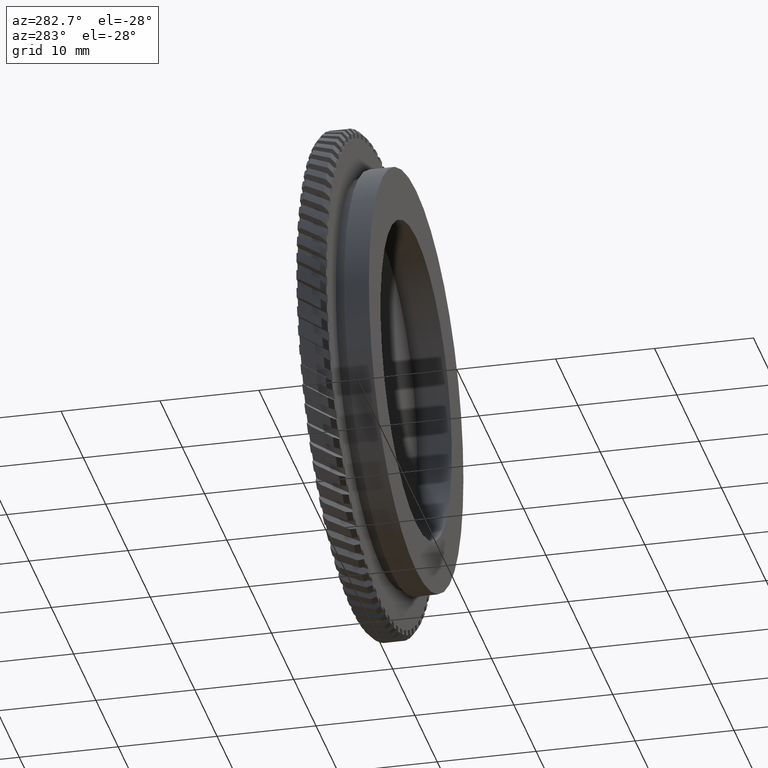
[diagram: clean part render]
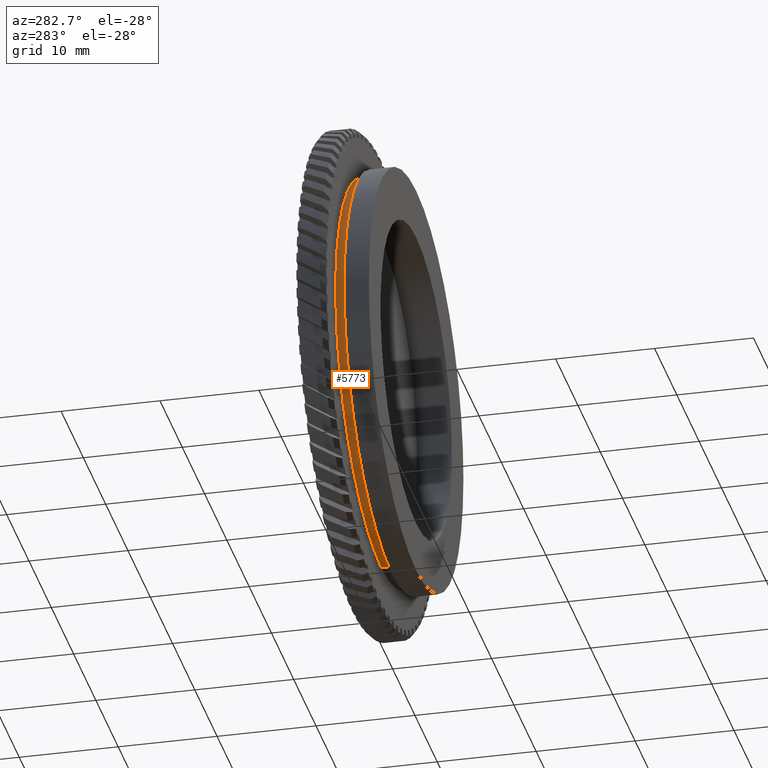
[diagram: same view with one face highlighted and labeled with its STEP entity id]
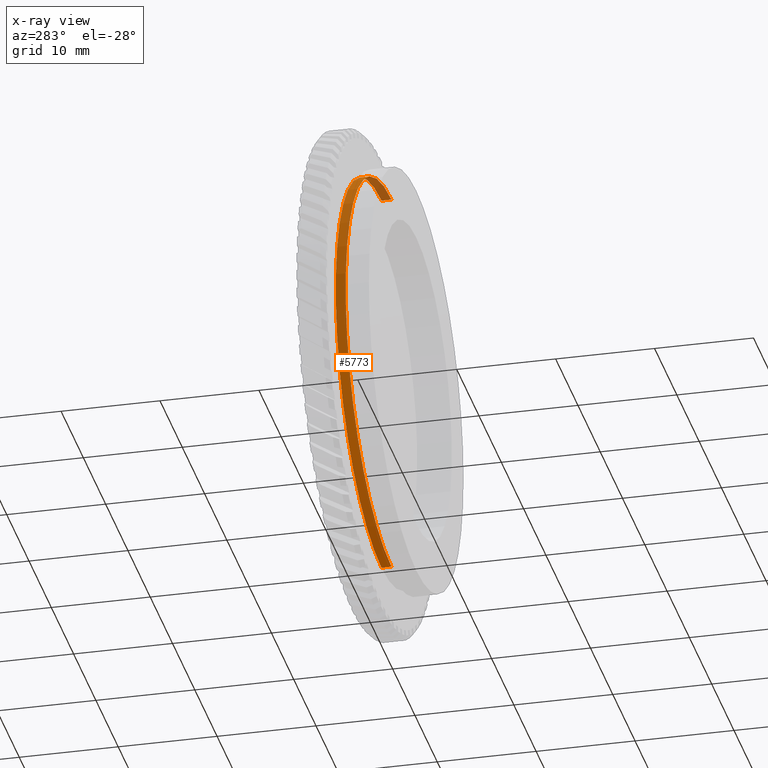
[diagram: x-ray of the same camera — body ghosted, the highlighted face saturated]
A machine part, auxiliary view. The second image highlights one B-rep face of the part: STEP entity #5773.
The next image is the same camera in x-ray: the body ghosted, the highlighted face saturated — about 6% of this face is hidden behind the body in this view.
In plain terms, the highlighted cylindrical surface (partial cylindrical patch) has radius 20.5 mm, axis along (-0, 1, -0).
Its self-contained STEP definition (entity closure, byte-faithful):
#273 = CIRCLE ( 'NONE', #4760, 20.50000000000000700 ) ;
#493 = VERTEX_POINT ( 'NONE', #12549 ) ;
#639 = ORIENTED_EDGE ( 'NONE', *, *, #2608, .T. ) ;
#825 = LINE ( 'NONE', #15407, #8602 ) ;
#920 = CARTESIAN_POINT ( 'NONE',  ( 0.0000000000000000000, 66.62876213592232900, 20.50000000000000700 ) ) ;
#2527 = DIRECTION ( 'NONE',  ( 0.0000000000000000000, 0.0000000000000000000, 1.000000000000000000 ) ) ;
#2584 = CYLINDRICAL_SURFACE ( 'NONE', #14438, 20.50000000000000700 ) ;
#2608 = EDGE_CURVE ( 'NONE', #16906, #493, #273, .T. ) ;
#2777 = CARTESIAN_POINT ( 'NONE',  ( 0.0000000000000000000, 18.87125740523061500, 20.50000000000000700 ) ) ;
#3402 = EDGE_CURVE ( 'NONE', #493, #15855, #10978, .T. ) ;
#3522 = DIRECTION ( 'NONE',  ( 0.0000000000000000000, 0.0000000000000000000, 1.000000000000000000 ) ) ;
#3931 = ORIENTED_EDGE ( 'NONE', *, *, #8350, .F. ) ;
#4017 = DIRECTION ( 'NONE',  ( -0.0000000000000000000, 1.000000000000000000, -0.0000000000000000000 ) ) ;
#4465 = EDGE_LOOP ( 'NONE', ( #3931, #639, #18629, #12265 ) ) ;
#4760 = AXIS2_PLACEMENT_3D ( 'NONE', #8789, #4017, #8593 ) ;
#5613 = DIRECTION ( 'NONE',  ( -0.0000000000000000000, 1.000000000000000000, -0.0000000000000000000 ) ) ;
#5773 = ADVANCED_FACE ( 'NONE', ( #15019 ), #2584, .T. ) ;
#6350 = VECTOR ( 'NONE', #5613, 1000.000000000000000 ) ;
#6815 = CARTESIAN_POINT ( 'NONE',  ( 2.510525938252074900E-015, 17.87125740523061500, -20.50000000000000700 ) ) ;
#7016 = CARTESIAN_POINT ( 'NONE',  ( 2.510525938252074900E-015, 18.87125740523061500, -20.50000000000000700 ) ) ;
#8135 = EDGE_CURVE ( 'NONE', #20115, #15855, #11055, .T. ) ;
#8350 = EDGE_CURVE ( 'NONE', #16906, #20115, #825, .T. ) ;
#8593 = DIRECTION ( 'NONE',  ( 0.0000000000000000000, 0.0000000000000000000, 1.000000000000000000 ) ) ;
#8602 = VECTOR ( 'NONE', #14004, 1000.000000000000000 ) ;
#8789 = CARTESIAN_POINT ( 'NONE',  ( 0.0000000000000000000, 17.87125740523061500, 0.0000000000000000000 ) ) ;
#9589 = DIRECTION ( 'NONE',  ( -0.0000000000000000000, 1.000000000000000000, -0.0000000000000000000 ) ) ;
#9865 = CARTESIAN_POINT ( 'NONE',  ( 0.0000000000000000000, 66.62876213592232900, 0.0000000000000000000 ) ) ;
#10289 = DIRECTION ( 'NONE',  ( -0.0000000000000000000, 1.000000000000000000, -0.0000000000000000000 ) ) ;
#10978 = LINE ( 'NONE', #920, #6350 ) ;
#11055 = CIRCLE ( 'NONE', #12280, 20.50000000000000700 ) ;
#12265 = ORIENTED_EDGE ( 'NONE', *, *, #8135, .F. ) ;
#12280 = AXIS2_PLACEMENT_3D ( 'NONE', #19593, #10289, #2527 ) ;
#12549 = CARTESIAN_POINT ( 'NONE',  ( 0.0000000000000000000, 17.87125740523061500, 20.50000000000000700 ) ) ;
#14004 = DIRECTION ( 'NONE',  ( -0.0000000000000000000, 1.000000000000000000, -0.0000000000000000000 ) ) ;
#14438 = AXIS2_PLACEMENT_3D ( 'NONE', #9865, #9589, #3522 ) ;
#15019 = FACE_OUTER_BOUND ( 'NONE', #4465, .T. ) ;
#15407 = CARTESIAN_POINT ( 'NONE',  ( 2.510525938252074900E-015, 66.62876213592232900, -20.50000000000000700 ) ) ;
#15855 = VERTEX_POINT ( 'NONE', #2777 ) ;
#16906 = VERTEX_POINT ( 'NONE', #6815 ) ;
#18629 = ORIENTED_EDGE ( 'NONE', *, *, #3402, .T. ) ;
#19593 = CARTESIAN_POINT ( 'NONE',  ( 0.0000000000000000000, 18.87125740523061500, 0.0000000000000000000 ) ) ;
#20115 = VERTEX_POINT ( 'NONE', #7016 ) ;